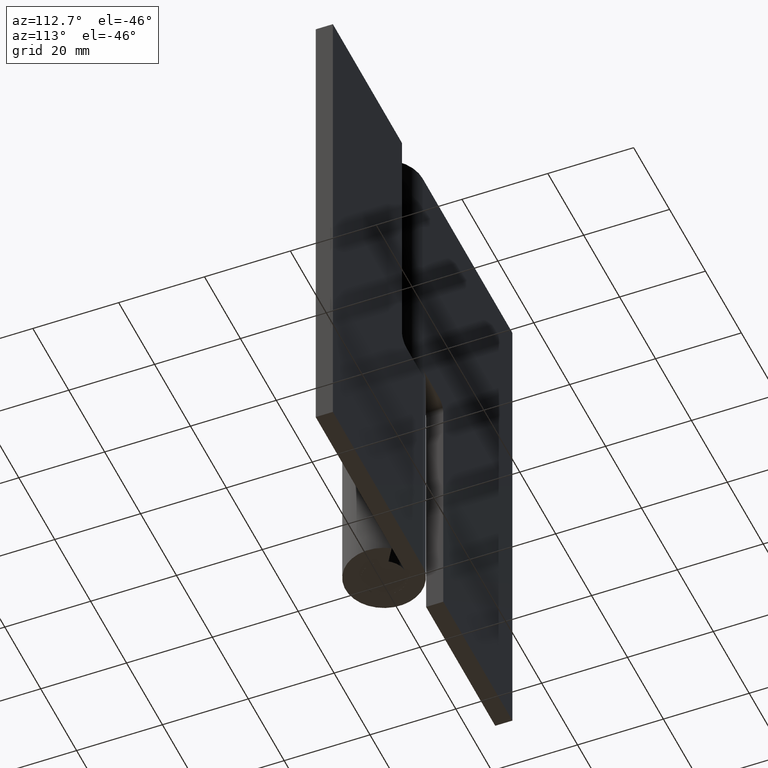
[diagram: clean part render]
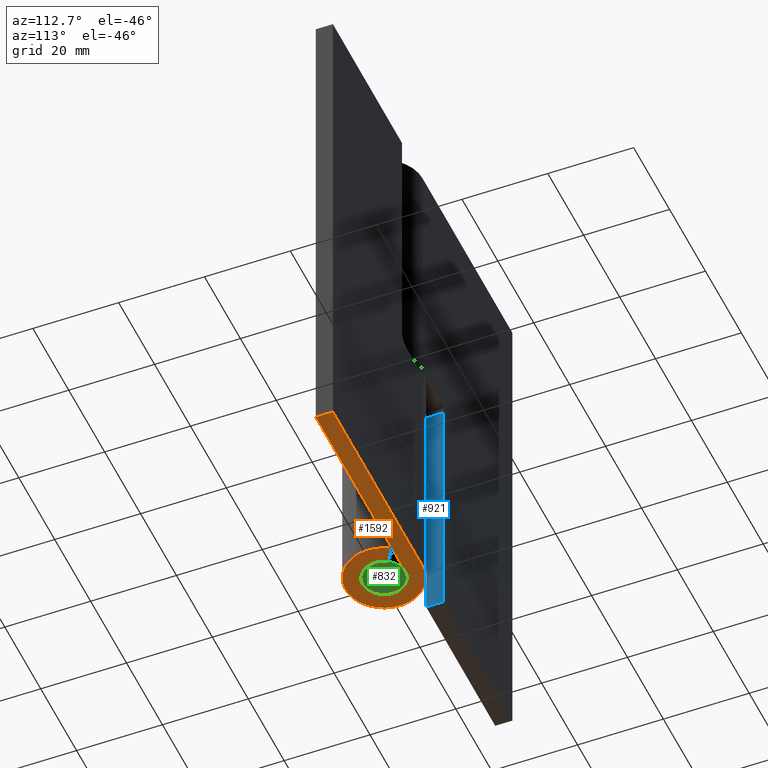
[diagram: same view with three faces highlighted in distinct colors, each labeled with its STEP entity id]
A machine part, auxiliary view with three faces highlighted in distinct colors.
Their STEP definitions:

[orange] entity #1592 — the highlighted face is a freeform B-spline surface patch.
#1515=CARTESIAN_POINT('',(-11.945583010051299,-9.893227281372331,0.0));
#1516=CARTESIAN_POINT('',(52.946981683424291,-9.893227281372331,0.0));
#1517=CARTESIAN_POINT('',(-11.945583010051299,9.898821062511304,0.0));
#1518=CARTESIAN_POINT('',(52.946981683424291,9.898821062511304,0.0));
#1519=B_SPLINE_SURFACE_WITH_KNOTS('',1,1,((#1515,#1517),(#1516,#1518)),.UNSPECIFIED.,.F.,.F.,.U.,(2,2),(2,2),(0.0,64.892564693475592),(0.0,19.792048343883639),.UNSPECIFIED.);
#1520=CARTESIAN_POINT('',(7.516481889820530,4.950000000000000,0.0));
#1521=VERTEX_POINT('',#1520);
#1522=CARTESIAN_POINT('',(0.0,9.0,0.0));
#1523=VERTEX_POINT('',#1522);
#1524=CARTESIAN_POINT('',(7.516481889820528,4.950000000000002,0.0));
#1525=CARTESIAN_POINT('',(11.372849226319257,-0.905821261674366,0.0));
#1526=CARTESIAN_POINT('',(6.638175985501286,-6.077385917112227,0.0));
#1527=CARTESIAN_POINT('',(1.903502744683314,-11.248950572550088,0.0));
#1528=CARTESIAN_POINT('',(-4.269074841227310,-7.923067587746555,0.0));
#1529=CARTESIAN_POINT('',(-10.441652427137932,-4.597184602943023,0.0));
#1530=CARTESIAN_POINT('',(-8.726614701295084,2.201407698528487,0.0));
#1531=CARTESIAN_POINT('',(-7.011576975452235,9.0,0.0));
#1532=CARTESIAN_POINT('',(0.0,9.0,0.0));
#1540=(BOUNDED_CURVE()B_SPLINE_CURVE(2,(#1524,#1525,#1526,#1527,#1528,#1529,#1530,#1531,#1532),.UNSPECIFIED.,.F.,.U.)B_SPLINE_CURVE_WITH_KNOTS((3,2,2,2,3),(0.0,0.250000000000000,0.500000000000000,0.750000000000000,1.0),.UNSPECIFIED.)CURVE()GEOMETRIC_REPRESENTATION_ITEM()RATIONAL_B_SPLINE_CURVE((1.0,0.788860207955774,1.0,0.788860207955774,1.0,0.788860207955774,1.0,0.788860207955774,1.0))REPRESENTATION_ITEM(''));
#1541=EDGE_CURVE('',#1521,#1523,#1540,.T.);
#1542=ORIENTED_EDGE('',*,*,#1541,.T.);
#1543=CARTESIAN_POINT('',(50.0,9.0,0.0));
#1544=VERTEX_POINT('',#1543);
#1545=CARTESIAN_POINT('',(0.0,9.0,0.0));
#1546=CARTESIAN_POINT('',(50.0,9.0,0.0));
#1547=QUASI_UNIFORM_CURVE('',1,(#1545,#1546),.UNSPECIFIED.,.F.,.U.);
#1548=EDGE_CURVE('',#1523,#1544,#1547,.T.);
#1549=ORIENTED_EDGE('',*,*,#1548,.T.);
#1550=CARTESIAN_POINT('',(50.0,5.0,0.0));
#1551=VERTEX_POINT('',#1550);
#1552=CARTESIAN_POINT('',(50.0,9.0,0.0));
#1553=CARTESIAN_POINT('',(50.0,5.0,0.0));
#1554=QUASI_UNIFORM_CURVE('',1,(#1552,#1553),.UNSPECIFIED.,.F.,.U.);
#1555=EDGE_CURVE('',#1544,#1551,#1554,.T.);
#1556=ORIENTED_EDGE('',*,*,#1555,.T.);
#1557=CARTESIAN_POINT('',(0.0,5.0,0.0));
#1558=VERTEX_POINT('',#1557);
#1559=CARTESIAN_POINT('',(50.0,5.0,0.0));
#1560=CARTESIAN_POINT('',(0.0,5.0,0.0));
#1561=QUASI_UNIFORM_CURVE('',1,(#1559,#1560),.UNSPECIFIED.,.F.,.U.);
#1562=EDGE_CURVE('',#1551,#1558,#1561,.T.);
#1563=ORIENTED_EDGE('',*,*,#1562,.T.);
#1564=CARTESIAN_POINT('',(4.175823272122515,2.750000000000000,0.0));
#1565=VERTEX_POINT('',#1564);
#1566=CARTESIAN_POINT('',(4.175823272122516,2.750000000000002,0.0));
#1567=CARTESIAN_POINT('',(6.318249570177366,-0.503234034263535,0.0));
#1568=CARTESIAN_POINT('',(3.687875547500715,-3.376325509506793,0.0));
#1569=CARTESIAN_POINT('',(1.057501524824064,-6.249416984750050,0.0));
#1570=CARTESIAN_POINT('',(-2.371708245126283,-4.401704215414753,0.0));
#1571=CARTESIAN_POINT('',(-5.800918015076630,-2.553991446079456,0.0));
#1572=CARTESIAN_POINT('',(-4.848119278497269,1.223004276960271,0.0));
#1573=CARTESIAN_POINT('',(-3.895320541917909,4.999999999999999,0.0));
#1574=CARTESIAN_POINT('',(0.0,5.0,0.0));
#1582=(BOUNDED_CURVE()B_SPLINE_CURVE(2,(#1566,#1567,#1568,#1569,#1570,#1571,#1572,#1573,#1574),.UNSPECIFIED.,.F.,.U.)B_SPLINE_CURVE_WITH_KNOTS((3,2,2,2,3),(0.0,0.250000000000000,0.500000000000000,0.750000000000000,1.0),.UNSPECIFIED.)CURVE()GEOMETRIC_REPRESENTATION_ITEM()RATIONAL_B_SPLINE_CURVE((1.0,0.788860207955774,1.0,0.788860207955774,1.0,0.788860207955774,1.0,0.788860207955774,1.0))REPRESENTATION_ITEM(''));
#1583=EDGE_CURVE('',#1565,#1558,#1582,.T.);
#1584=ORIENTED_EDGE('',*,*,#1583,.F.);
#1585=CARTESIAN_POINT('',(4.175823272122515,2.750000000000000,0.0));
#1586=CARTESIAN_POINT('',(7.516481889820530,4.950000000000000,0.0));
#1587=QUASI_UNIFORM_CURVE('',1,(#1585,#1586),.UNSPECIFIED.,.F.,.U.);
#1588=EDGE_CURVE('',#1565,#1521,#1587,.T.);
#1589=ORIENTED_EDGE('',*,*,#1588,.T.);
#1590=EDGE_LOOP('',(#1542,#1549,#1556,#1563,#1584,#1589));
#1591=FACE_OUTER_BOUND('',#1590,.T.);
#1592=ADVANCED_FACE('',(#1591),#1519,.F.);

[blue] entity #921 — the highlighted face is a freeform B-spline surface patch.
#886=CARTESIAN_POINT('',(-11.500000000000000,4.800200007752776,-2.922074886615651));
#887=CARTESIAN_POINT('',(-11.500000000000000,4.800200007752776,61.422076455707931));
#888=CARTESIAN_POINT('',(-11.500000000000000,9.199800099535585,-2.922074886615651));
#889=CARTESIAN_POINT('',(-11.500000000000000,9.199800099535585,61.422076455707931));
#890=B_SPLINE_SURFACE_WITH_KNOTS('',1,1,((#886,#888),(#887,#889)),.UNSPECIFIED.,.F.,.F.,.U.,(2,2),(2,2),(0.0,64.344151342323585),(0.0,4.399600091782809),.UNSPECIFIED.);
#891=CARTESIAN_POINT('',(-11.500000000000000,9.0,0.0));
#892=VERTEX_POINT('',#891);
#893=CARTESIAN_POINT('',(-11.500000000000000,5.0,0.0));
#894=VERTEX_POINT('',#893);
#895=CARTESIAN_POINT('',(-11.500000000000000,9.0,0.0));
#896=CARTESIAN_POINT('',(-11.500000000000000,5.0,0.0));
#897=QUASI_UNIFORM_CURVE('',1,(#895,#896),.UNSPECIFIED.,.F.,.U.);
#898=EDGE_CURVE('',#892,#894,#897,.T.);
#899=ORIENTED_EDGE('',*,*,#898,.F.);
#900=CARTESIAN_POINT('',(-11.500000000000000,9.0,58.500000000000000));
#901=VERTEX_POINT('',#900);
#902=CARTESIAN_POINT('',(-11.500000000000000,9.0,58.500000000000000));
#903=CARTESIAN_POINT('',(-11.500000000000000,9.0,0.0));
#904=QUASI_UNIFORM_CURVE('',1,(#902,#903),.UNSPECIFIED.,.F.,.U.);
#905=EDGE_CURVE('',#901,#892,#904,.T.);
#906=ORIENTED_EDGE('',*,*,#905,.F.);
#907=CARTESIAN_POINT('',(-11.500000000000000,5.0,58.500000000000000));
#908=VERTEX_POINT('',#907);
#909=CARTESIAN_POINT('',(-11.500000000000000,9.0,58.500000000000000));
#910=CARTESIAN_POINT('',(-11.500000000000000,5.0,58.500000000000000));
#911=QUASI_UNIFORM_CURVE('',1,(#909,#910),.UNSPECIFIED.,.F.,.U.);
#912=EDGE_CURVE('',#901,#908,#911,.T.);
#913=ORIENTED_EDGE('',*,*,#912,.T.);
#914=CARTESIAN_POINT('',(-11.500000000000000,5.0,0.0));
#915=CARTESIAN_POINT('',(-11.500000000000000,5.0,58.500000000000000));
#916=QUASI_UNIFORM_CURVE('',1,(#914,#915),.UNSPECIFIED.,.F.,.U.);
#917=EDGE_CURVE('',#894,#908,#916,.T.);
#918=ORIENTED_EDGE('',*,*,#917,.F.);
#919=EDGE_LOOP('',(#899,#906,#913,#918));
#920=FACE_OUTER_BOUND('',#919,.T.);
#921=ADVANCED_FACE('',(#920),#890,.F.);

[green] entity #832 — the highlighted face is a freeform B-spline surface patch.
#543=CARTESIAN_POINT('',(0.305242697868242,-4.990673992097471,-8.881784E-016));
#544=VERTEX_POINT('',#543);
#550=CARTESIAN_POINT('',(5.0,0.0,0.0));
#551=VERTEX_POINT('',#550);
#552=CARTESIAN_POINT('',(5.0,0.0,0.0));
#553=CARTESIAN_POINT('',(4.999999999999999,-4.703530334162168,0.0));
#554=CARTESIAN_POINT('',(0.305242697868242,-4.990673992097471,-8.881784E-016));
#562=(BOUNDED_CURVE()B_SPLINE_CURVE(2,(#552,#553,#554),.UNSPECIFIED.,.F.,.U.)B_SPLINE_CURVE_WITH_KNOTS((3,3),(0.500000000000000,0.739332962228556),.UNSPECIFIED.)CURVE()GEOMETRIC_REPRESENTATION_ITEM()RATIONAL_B_SPLINE_CURVE((1.0,0.719603993298880,0.976072041644456))REPRESENTATION_ITEM(''));
#563=EDGE_CURVE('',#551,#544,#562,.T.);
#565=CARTESIAN_POINT('',(4.680719087080684,1.758086695196526,5.635189E-015));
#566=VERTEX_POINT('',#565);
#567=CARTESIAN_POINT('',(4.680719087080684,1.758086695196526,5.635189E-015));
#568=CARTESIAN_POINT('',(5.0,0.908035177646552,0.0));
#569=CARTESIAN_POINT('',(5.0,0.0,0.0));
#577=(BOUNDED_CURVE()B_SPLINE_CURVE(2,(#567,#568,#569),.UNSPECIFIED.,.F.,.U.)B_SPLINE_CURVE_WITH_KNOTS((3,3),(0.440284278098072,0.500000000000000),.UNSPECIFIED.)CURVE()GEOMETRIC_REPRESENTATION_ITEM()RATIONAL_B_SPLINE_CURVE((0.893499685822202,0.930038679993502,1.0))REPRESENTATION_ITEM(''));
#578=EDGE_CURVE('',#566,#551,#577,.T.);
#628=CARTESIAN_POINT('',(-5.0,0.0,0.0));
#629=VERTEX_POINT('',#628);
#630=CARTESIAN_POINT('',(-5.0,0.0,0.0));
#631=CARTESIAN_POINT('',(-5.000000000000001,5.000000000000001,0.0));
#632=CARTESIAN_POINT('',(0.0,5.0,0.0));
#633=CARTESIAN_POINT('',(3.463050489133572,5.0,0.0));
#634=CARTESIAN_POINT('',(4.680719087080684,1.758086695196526,5.635189E-015));
#642=(BOUNDED_CURVE()B_SPLINE_CURVE(2,(#630,#631,#632,#633,#634),.UNSPECIFIED.,.F.,.U.)B_SPLINE_CURVE_WITH_KNOTS((3,2,3),(0.0,0.250000000000000,0.440284278098072),.UNSPECIFIED.)CURVE()GEOMETRIC_REPRESENTATION_ITEM()RATIONAL_B_SPLINE_CURVE((1.0,0.707106781186548,1.0,0.777068101193046,0.893499685822202))REPRESENTATION_ITEM(''));
#643=EDGE_CURVE('',#629,#566,#642,.T.);
#645=CARTESIAN_POINT('',(0.305242697868242,-4.990673992097471,-8.881784E-016));
#646=CARTESIAN_POINT('',(0.152763816687446,-4.999999999999999,0.0));
#647=CARTESIAN_POINT('',(0.0,-5.0,0.0));
#648=CARTESIAN_POINT('',(-5.000000000000001,-5.000000000000001,0.0));
#649=CARTESIAN_POINT('',(-5.0,0.0,0.0));
#657=(BOUNDED_CURVE()B_SPLINE_CURVE(2,(#645,#646,#647,#648,#649),.UNSPECIFIED.,.F.,.U.)B_SPLINE_CURVE_WITH_KNOTS((3,2,3),(0.739332962228557,0.750000000000000,1.0),.UNSPECIFIED.)CURVE()GEOMETRIC_REPRESENTATION_ITEM()RATIONAL_B_SPLINE_CURVE((0.976072041644458,0.987502787887669,1.0,0.707106781186548,1.0))REPRESENTATION_ITEM(''));
#658=EDGE_CURVE('',#544,#629,#657,.T.);
#821=CARTESIAN_POINT('',(-5.499499980618060,-5.499378106426892,0.0));
#822=CARTESIAN_POINT('',(5.499500248838961,-5.499378106426892,0.0));
#823=CARTESIAN_POINT('',(-5.499499980618060,5.499405286144910,0.0));
#824=CARTESIAN_POINT('',(5.499500248838961,5.499405286144910,0.0));
#825=B_SPLINE_SURFACE_WITH_KNOTS('',1,1,((#821,#823),(#822,#824)),.UNSPECIFIED.,.F.,.F.,.U.,(2,2),(2,2),(0.0,10.999000229457019),(0.0,10.998783392571800),.UNSPECIFIED.);
#826=ORIENTED_EDGE('',*,*,#643,.T.);
#827=ORIENTED_EDGE('',*,*,#578,.T.);
#828=ORIENTED_EDGE('',*,*,#563,.T.);
#829=ORIENTED_EDGE('',*,*,#658,.T.);
#830=EDGE_LOOP('',(#826,#827,#828,#829));
#831=FACE_OUTER_BOUND('',#830,.T.);
#832=ADVANCED_FACE('',(#831),#825,.F.);